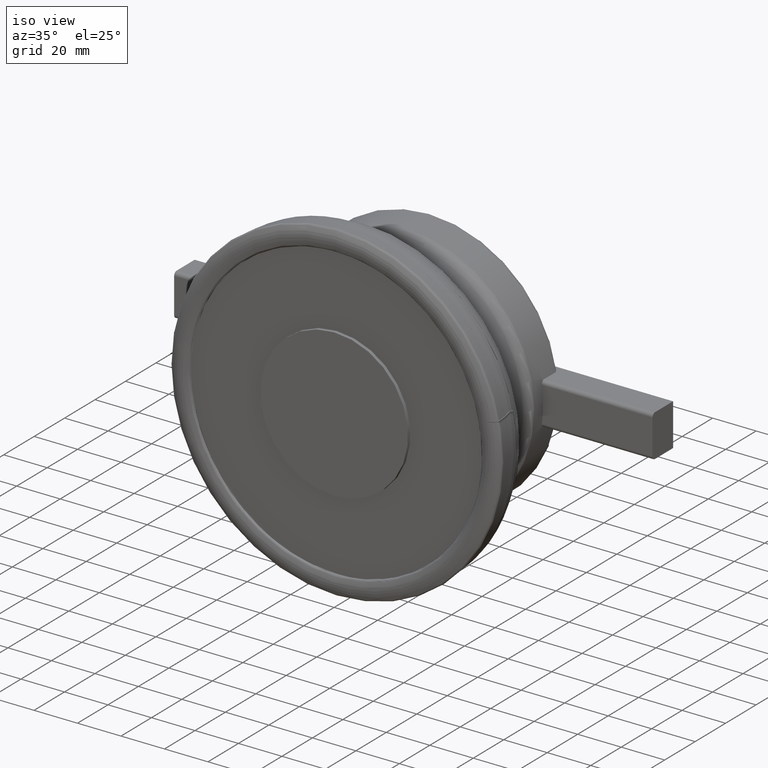
[diagram: clean part render]
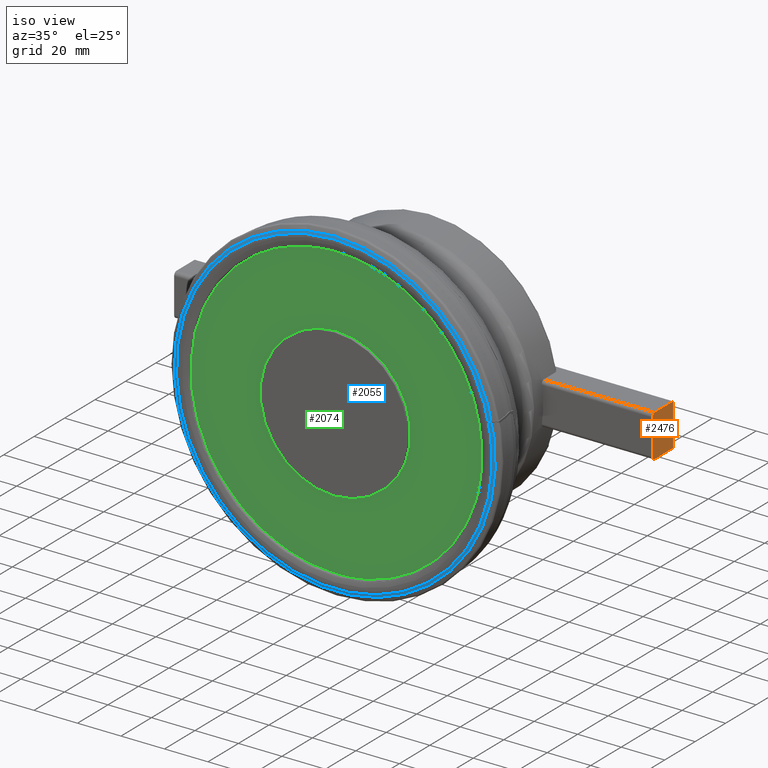
[diagram: same view with three faces highlighted in distinct colors, each labeled with its STEP entity id]
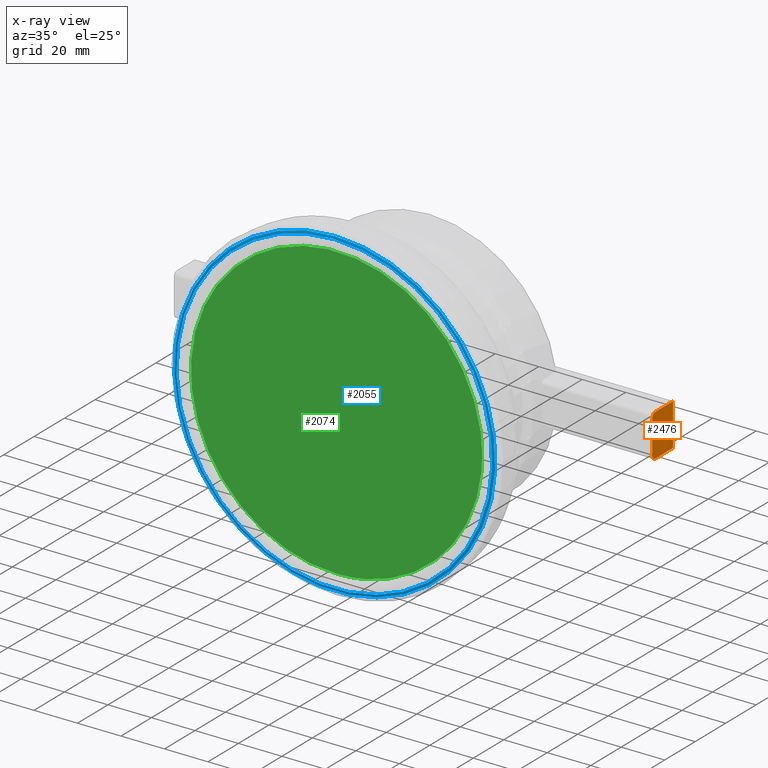
[diagram: x-ray of the same camera — body ghosted, the three highlighted faces saturated]
A machine part, iso view with three faces highlighted in distinct colors.
The next image is the same camera in x-ray (body ghosted, the three faces saturated) — at least one of them is partly hidden behind the body in this view.
Their STEP definitions:

[orange] entity #2476 — the highlighted planar face has unit normal (-1, 0, 0).
#604=PLANE('',#7868);
#1024=FACE_OUTER_BOUND('',#3258,.T.);
#1838=LINE('',#19395,#1995);
#1841=LINE('',#19401,#1998);
#1844=LINE('',#19407,#2001);
#1847=LINE('',#19413,#2004);
#1995=VECTOR('',#9050,1.);
#1998=VECTOR('',#9055,1.);
#2001=VECTOR('',#9060,1.);
#2004=VECTOR('',#9065,1.);
#2476=ADVANCED_FACE('',(#1024),#604,.F.);
#3258=EDGE_LOOP('',(#5343,#5344,#5345,#5346,#5347,#5348));
#5343=ORIENTED_EDGE('',*,*,#7072,.F.);
#5344=ORIENTED_EDGE('',*,*,#7077,.T.);
#5345=ORIENTED_EDGE('',*,*,#7069,.F.);
#5346=ORIENTED_EDGE('',*,*,#7078,.T.);
#5347=ORIENTED_EDGE('',*,*,#7066,.F.);
#5348=ORIENTED_EDGE('',*,*,#7075,.F.);
#6024=VERTEX_POINT('',#19394);
#6025=VERTEX_POINT('',#19396);
#6026=VERTEX_POINT('',#19400);
#6027=VERTEX_POINT('',#19402);
#6028=VERTEX_POINT('',#19406);
#6029=VERTEX_POINT('',#19408);
#7066=EDGE_CURVE('',#6024,#6025,#1838,.T.);
#7069=EDGE_CURVE('',#6026,#6027,#1841,.T.);
#7072=EDGE_CURVE('',#6028,#6029,#1844,.T.);
#7075=EDGE_CURVE('',#6029,#6024,#1847,.T.);
#7077=EDGE_CURVE('',#6028,#6027,#7357,.T.);
#7078=EDGE_CURVE('',#6026,#6025,#7358,.T.);
#7357=CIRCLE('',#7866,1.6);
#7358=CIRCLE('',#7867,1.6);
#7866=AXIS2_PLACEMENT_3D('',#19417,#9071,#9072);
#7867=AXIS2_PLACEMENT_3D('',#19418,#9073,#9074);
#7868=AXIS2_PLACEMENT_3D('',#19419,#9075,#9076);
#9050=DIRECTION('',(-1.,0.,3.1540426835942E-16));
#9055=DIRECTION('',(0.,0.,-1.));
#9060=DIRECTION('',(1.,0.,0.));
#9065=DIRECTION('',(0.,0.,1.));
#9071=DIRECTION('',(0.,1.,0.));
#9072=DIRECTION('',(0.,0.,-1.));
#9073=DIRECTION('',(0.,1.,0.));
#9074=DIRECTION('',(0.,0.,-1.));
#9075=DIRECTION('',(0.,-1.,0.));
#9076=DIRECTION('',(0.,0.,-1.));
#19394=CARTESIAN_POINT('',(65.5,110.,9.725));
#19395=CARTESIAN_POINT('',(63.,110.,9.725));
#19396=CARTESIAN_POINT('',(53.6,110.,9.725));
#19400=CARTESIAN_POINT('',(52.,110.,8.125));
#19401=CARTESIAN_POINT('',(52.,110.,9.725));
#19402=CARTESIAN_POINT('',(52.,110.,-8.125));
#19406=CARTESIAN_POINT('',(53.6,110.,-9.725));
#19407=CARTESIAN_POINT('',(52.,110.,-9.725));
#19408=CARTESIAN_POINT('',(65.5,110.,-9.725));
#19413=CARTESIAN_POINT('',(65.5,110.,-9.725));
#19417=CARTESIAN_POINT('',(53.6,110.,-8.125));
#19418=CARTESIAN_POINT('',(53.6,110.,8.125));
#19419=CARTESIAN_POINT('',(0.,110.,0.));

[blue] entity #2055 — the highlighted face is a SurfaceOfRevolution surface.
#489=SURFACE_OF_REVOLUTION('',#1117,#513);
#513=AXIS1_PLACEMENT('',#9566,#8079);
#1117=B_SPLINE_CURVE_WITH_KNOTS('',3,(#9562,#9563,#9564,#9565),
 .UNSPECIFIED.,.F.,.F.,(4,4),(0.,1.),.UNSPECIFIED.);
#2055=ADVANCED_FACE('',(#2581,#2582),#489,.T.);
#2581=FACE_BOUND('',#2779,.T.);
#2582=FACE_BOUND('',#2780,.T.);
#2779=EDGE_LOOP('',(#3453));
#2780=EDGE_LOOP('',(#3454));
#3453=ORIENTED_EDGE('',*,*,#6125,.F.);
#3454=ORIENTED_EDGE('',*,*,#6124,.T.);
#5436=VERTEX_POINT('',#9554);
#5437=VERTEX_POINT('',#9561);
#6124=EDGE_CURVE('',#5436,#5436,#7120,.T.);
#6125=EDGE_CURVE('',#5437,#5437,#7121,.T.);
#7120=CIRCLE('',#7443,72.6348846837393);
#7121=CIRCLE('',#7444,73.8164498926936);
#7443=AXIS2_PLACEMENT_3D('',#9553,#8074,#8075);
#7444=AXIS2_PLACEMENT_3D('',#9560,#8077,#8078);
#8074=DIRECTION('',(0.,1.,0.));
#8075=DIRECTION('',(0.,0.,1.));
#8077=DIRECTION('',(0.,1.,0.));
#8078=DIRECTION('',(0.,0.,1.));
#8079=DIRECTION('',(0.,1.,0.));
#9553=CARTESIAN_POINT('',(0.,0.112796736456627,0.));
#9554=CARTESIAN_POINT('',(0.,0.112796736456627,72.6348846837393));
#9560=CARTESIAN_POINT('',(0.,0.429783437367558,0.));
#9561=CARTESIAN_POINT('',(0.,0.429783437367558,73.8164498926936));
#9562=CARTESIAN_POINT('',(70.8904056793418,0.112788161761438,15.8233182571828));
#9563=CARTESIAN_POINT('',(71.2866782138718,0.186808990150242,15.8936219129615));
#9564=CARTESIAN_POINT('',(71.6779463837397,0.292715216339536,15.955614184328));
#9565=CARTESIAN_POINT('',(72.0595170766904,0.429783437367558,16.0091934036262));
#9566=CARTESIAN_POINT('',(0.,0.,0.));

[green] entity #2074 — the highlighted planar face has unit normal (0, 1, 0).
#546=PLANE('',#7461);
#660=FACE_OUTER_BOUND('',#2816,.T.);
#1131=B_SPLINE_CURVE_WITH_KNOTS('',3,(#9738,#9739,#9740,#9741,#9742,#9743,
#9744,#9745,#9746,#9747,#9748,#9749,#9750,#9751,#9752,#9753,#9754,#9755,
#9756,#9757,#9758,#9759,#9760,#9761,#9762,#9763,#9764,#9765,#9766,#9767,
#9768,#9769,#9770,#9771,#9772,#9773,#9774,#9775,#9776,#9777,#9778,#9779,
#9780,#9781,#9782,#9783,#9784,#9785,#9786,#9787,#9788,#9789,#9790,#9791,
#9792,#9793,#9794,#9795,#9796,#9797),.UNSPECIFIED.,.T.,.F.,(2,2,2,2,2,2,
2,2,2,2,2,2,2,2,2,2,2,2,2,2,2,2,2,2,2,2,2,2,2,2,2,2),(-0.0312499999999999,
0.,0.0624999999999998,0.0937499999999998,0.125,0.15625,0.1875,0.21875,0.25,
0.28125,0.312499999999999,0.34375,0.375,0.40625,0.4375,0.5,0.53125,0.5625,
0.59375,0.625,0.65625,0.6875,0.71875,0.75,0.78125,0.8125,0.875,0.90625,
0.9375,0.96875,1.,1.0625),.UNSPECIFIED.);
#2074=ADVANCED_FACE('',(#660),#546,.F.);
#2816=EDGE_LOOP('',(#3490));
#3490=ORIENTED_EDGE('',*,*,#6141,.T.);
#5453=VERTEX_POINT('',#9798);
#6141=EDGE_CURVE('',#5453,#5453,#1131,.T.);
#7461=AXIS2_PLACEMENT_3D('',#9995,#8131,#8132);
#8131=DIRECTION('',(0.,1.,0.));
#8132=DIRECTION('',(0.,0.,1.));
#9738=CARTESIAN_POINT('',(66.9066929608814,1.56849521522972,5.61681163497736));
#9739=CARTESIAN_POINT('',(64.9261856273093,1.56849521522972,18.7459317516701));
#9740=CARTESIAN_POINT('',(61.8541559497364,1.56849521522972,27.1785884237457));
#9741=CARTESIAN_POINT('',(55.084966136286,1.56849521522972,38.3816209476826));
#9742=CARTESIAN_POINT('',(52.4480877936631,1.56849521522973,41.9178390003213));
#9743=CARTESIAN_POINT('',(46.5019653978174,1.56849521522973,48.4300976027185));
#9744=CARTESIAN_POINT('',(43.2529679806236,1.56849521522973,51.3491233193665));
#9745=CARTESIAN_POINT('',(36.2181664153467,1.56849521522973,56.5313729384898));
#9746=CARTESIAN_POINT('',(32.3866902006219,1.56849521522973,58.811203167721));
#9747=CARTESIAN_POINT('',(24.4528273096097,1.56849521522973,62.5277103111287));
#9748=CARTESIAN_POINT('',(20.3399613771334,1.56849521522971,63.9844066455625));
#9749=CARTESIAN_POINT('',(11.8209219839686,1.56849521522971,66.0907264754814));
#9750=CARTESIAN_POINT('',(7.41661572004268,1.56849521522972,66.7271938082732));
#9751=CARTESIAN_POINT('',(-1.30560199962479,1.56849521522972,67.1254049200764));
#9752=CARTESIAN_POINT('',(-5.67145117533766,1.56849521522972,66.9017416365444));
#9753=CARTESIAN_POINT('',(-14.412993477177,1.56849521522972,65.5764745275623));
#9754=CARTESIAN_POINT('',(-18.6624849178852,1.56849521522972,64.492028484424));
#9755=CARTESIAN_POINT('',(-26.8710591574605,1.56849521522972,61.5260616414078));
#9756=CARTESIAN_POINT('',(-30.8790699067291,1.56849521522972,59.617634868111));
#9757=CARTESIAN_POINT('',(-38.40242244477,1.56849521522972,55.0729815421817));
#9758=CARTESIAN_POINT('',(-41.8984055269298,1.56849521522972,52.4607939374481));
#9759=CARTESIAN_POINT('',(-48.3659061391224,1.56849521522972,46.5655496004081));
#9760=CARTESIAN_POINT('',(-51.3516679122001,1.56849521522971,43.2503021036828));
#9761=CARTESIAN_POINT('',(-56.5373334706704,1.56849521522971,36.209285458994));
#9762=CARTESIAN_POINT('',(-58.7725076721697,1.56849521522973,32.4595790444391));
#9763=CARTESIAN_POINT('',(-62.5134890986328,1.56849521522973,24.49276649406));
#9764=CARTESIAN_POINT('',(-63.9897823234141,1.56849521522972,20.317766601813));
#9765=CARTESIAN_POINT('',(-67.1319336719165,1.56849521522972,7.61065050677581));
#9766=CARTESIAN_POINT('',(-67.5491378089777,1.56849521522973,-1.37121315537563));
#9767=CARTESIAN_POINT('',(-65.591812670874,1.56849521522973,-14.326720601008));
#9768=CARTESIAN_POINT('',(-64.4979644029275,1.56849521522972,-18.646423264226));
#9769=CARTESIAN_POINT('',(-61.5188314567768,1.56849521522972,-26.8907026472468));
#9770=CARTESIAN_POINT('',(-59.642468230274,1.56849521522972,-30.829702563678));
#9771=CARTESIAN_POINT('',(-55.1150568905215,1.56849521522972,-38.3409061019517));
#9772=CARTESIAN_POINT('',(-52.4509187599047,1.56849521522974,-41.909833658209));
#9773=CARTESIAN_POINT('',(-46.5671417988317,1.56849521522974,-48.363564185287));
#9774=CARTESIAN_POINT('',(-43.3243429836579,1.56849521522972,-51.293003438755));
#9775=CARTESIAN_POINT('',(-36.2160740963622,1.56849521522972,-56.5364207726361));
#9776=CARTESIAN_POINT('',(-32.4375776207494,1.56849521522972,-58.7818821125706));
#9777=CARTESIAN_POINT('',(-24.538802511142,1.56849521522972,-62.4928258115878));
#9778=CARTESIAN_POINT('',(-20.3616207942929,1.5684952152297,-63.9782173955377));
#9779=CARTESIAN_POINT('',(-11.8231737074571,1.5684952152297,-66.0910013993173));
#9780=CARTESIAN_POINT('',(-7.50370345835148,1.56849521522972,-66.7179823737531));
#9781=CARTESIAN_POINT('',(1.23407374219807,1.56849521522972,-67.1272805915309));
#9782=CARTESIAN_POINT('',(5.68996543223526,1.56849521522972,-66.8971013146942));
#9783=CARTESIAN_POINT('',(14.339747418227,1.56849521522972,-65.5894009342206));
#9784=CARTESIAN_POINT('',(18.5714535410413,1.56849521522972,-64.5205649866432));
#9785=CARTESIAN_POINT('',(26.8455025360429,1.56849521522972,-61.5395903984583));
#9786=CARTESIAN_POINT('',(30.8484633772569,1.56849521522972,-59.631192232341));
#9787=CARTESIAN_POINT('',(42.0600730307123,1.56849521522972,-52.873248146268));
#9788=CARTESIAN_POINT('',(48.7099750229243,1.56849521522973,-46.8195089871831));
#9789=CARTESIAN_POINT('',(56.490632366663,1.56849521522973,-36.2813964521099));
#9790=CARTESIAN_POINT('',(58.7725184967834,1.5684952152297,-32.4575135536524));
#9791=CARTESIAN_POINT('',(62.5022192444158,1.5684952152297,-24.5188031123718));
#9792=CARTESIAN_POINT('',(63.962580780373,1.56849521522972,-20.4073641133355));
#9793=CARTESIAN_POINT('',(66.0760206257645,1.56849521522972,-11.9009137633853));
#9794=CARTESIAN_POINT('',(66.7193173369037,1.56849521522973,-7.49128000652754));
#9795=CARTESIAN_POINT('',(67.1270235616951,1.56849521522973,1.24470469842739));
#9796=CARTESIAN_POINT('',(66.9066929608814,1.56849521522972,5.61681163497736));
#9797=CARTESIAN_POINT('',(64.9261856273093,1.56849521522972,18.7459317516701));
#9798=CARTESIAN_POINT('',(66.2465238496907,1.56849521522972,9.99318500720827));
#9995=CARTESIAN_POINT('',(0.,1.56849521522972,0.));